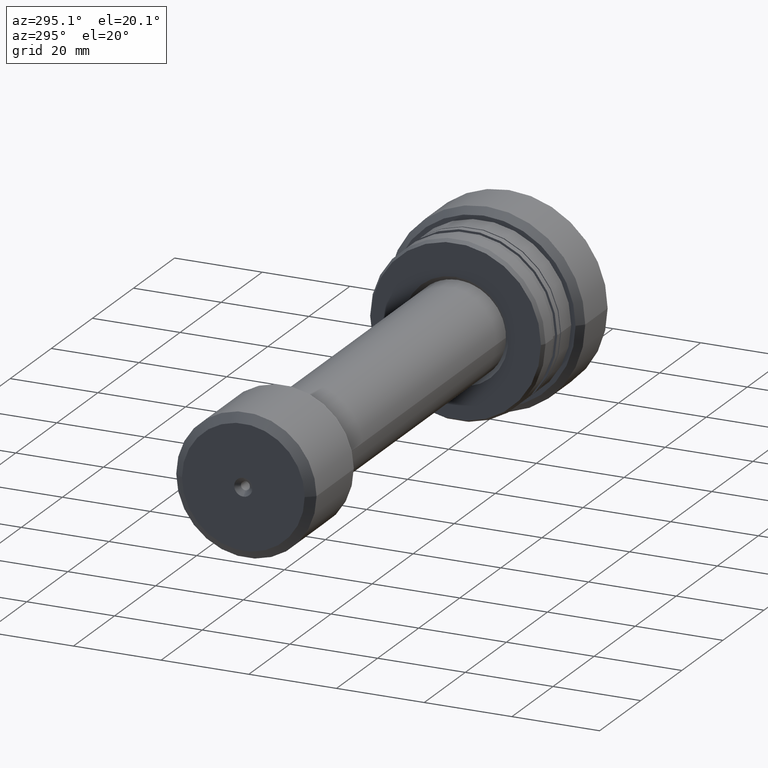
[diagram: clean part render]
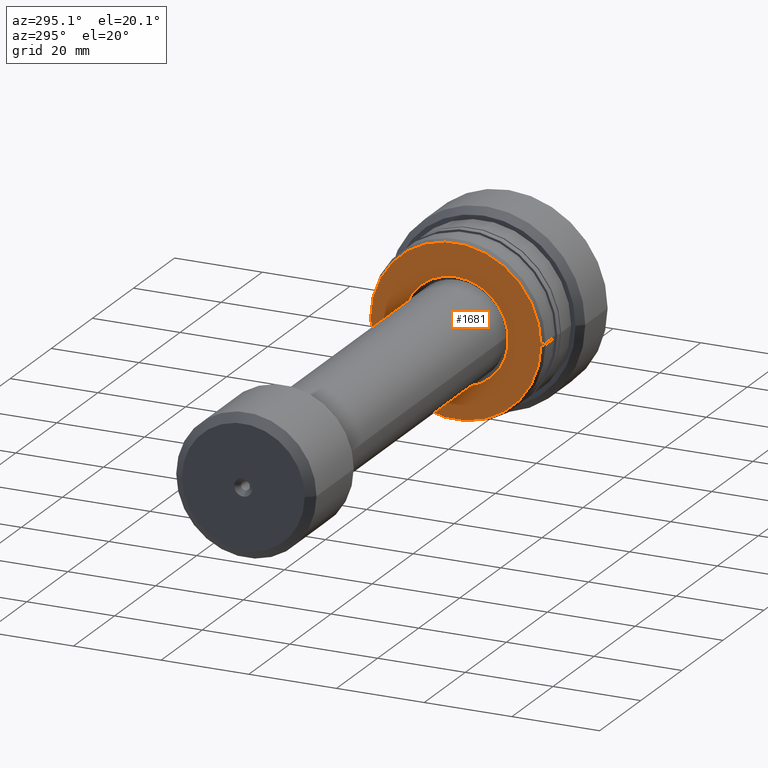
[diagram: same view with one face highlighted and labeled with its STEP entity id]
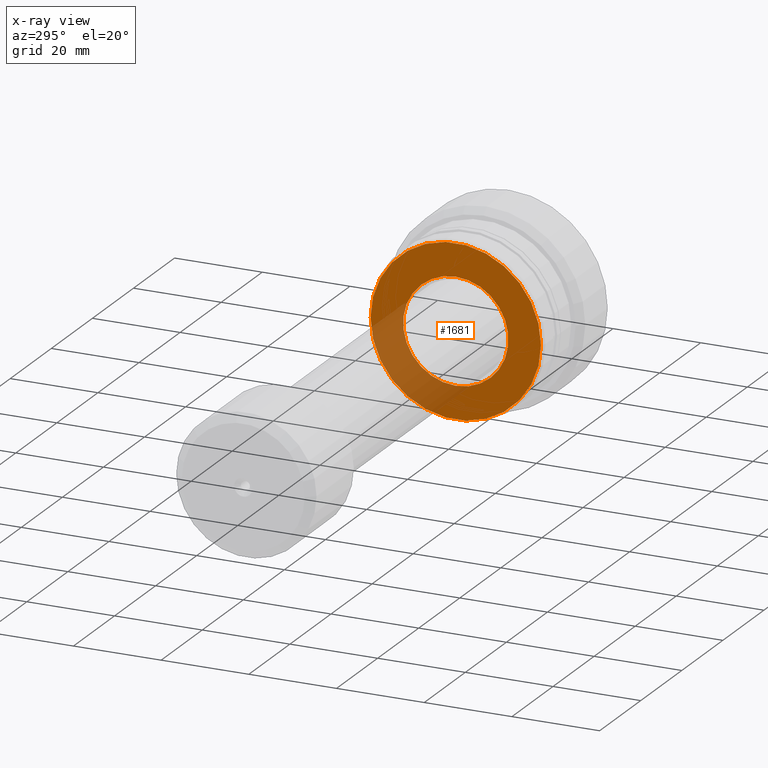
[diagram: x-ray of the same camera — body ghosted, the highlighted face saturated]
A machine part, auxiliary view. The second image highlights one B-rep face of the part: STEP entity #1681.
The next image is the same camera in x-ray: the body ghosted, the highlighted face saturated — about 25% of this face is hidden behind the body in this view.
In plain terms, the highlighted planar face has unit normal (-1, 0, 0).
Its self-contained STEP definition (entity closure, byte-faithful):
#9 = VERTEX_POINT ( 'NONE', #1636 ) ;
#133 = DIRECTION ( 'NONE',  ( -1.445602896647338522E-15, -1.000000000000000000, 0.000000000000000000 ) ) ;
#148 = CIRCLE ( 'NONE', #1540, 12.00000000000000533 ) ;
#207 = EDGE_LOOP ( 'NONE', ( #379, #436 ) ) ;
#239 = DIRECTION ( 'NONE',  ( -1.333885945136072597E-15, -1.000000000000000000, 0.000000000000000000 ) ) ;
#299 = DIRECTION ( 'NONE',  ( 1.000000000000000000, -1.333885945136072597E-15, 0.000000000000000000 ) ) ;
#379 = ORIENTED_EDGE ( 'NONE', *, *, #761, .T. ) ;
#433 = FACE_OUTER_BOUND ( 'NONE', #207, .T. ) ;
#436 = ORIENTED_EDGE ( 'NONE', *, *, #1176, .T. ) ;
#484 = CARTESIAN_POINT ( 'NONE',  ( -27.49999999999998224, 0.000000000000000000, 0.000000000000000000 ) ) ;
#608 = DIRECTION ( 'NONE',  ( -1.250402442523061283E-15, -1.000000000000000000, 0.000000000000000000 ) ) ;
#761 = EDGE_CURVE ( 'NONE', #1311, #9, #904, .T. ) ;
#818 = PLANE ( 'NONE',  #2283 ) ;
#819 = CARTESIAN_POINT ( 'NONE',  ( -27.49999999999996803, -3.708233295962692034E-15, 0.000000000000000000 ) ) ;
#829 = AXIS2_PLACEMENT_3D ( 'NONE', #819, #1402, #608 ) ;
#896 = CARTESIAN_POINT ( 'NONE',  ( -27.49999999999994316, 19.42264973081047330, 0.000000000000000000 ) ) ;
#904 = CIRCLE ( 'NONE', #984, 19.42264973081047685 ) ;
#909 = CIRCLE ( 'NONE', #829, 19.42264973081047685 ) ;
#984 = AXIS2_PLACEMENT_3D ( 'NONE', #1643, #1440, #1102 ) ;
#1083 = VERTEX_POINT ( 'NONE', #1563 ) ;
#1102 = DIRECTION ( 'NONE',  ( -1.250402442523061283E-15, -1.000000000000000000, 0.000000000000000000 ) ) ;
#1173 = ORIENTED_EDGE ( 'NONE', *, *, #2433, .T. ) ;
#1176 = EDGE_CURVE ( 'NONE', #9, #1311, #909, .T. ) ;
#1203 = FACE_BOUND ( 'NONE', #1284, .T. ) ;
#1284 = EDGE_LOOP ( 'NONE', ( #1297, #1173 ) ) ;
#1293 = EDGE_CURVE ( 'NONE', #1083, #1711, #148, .T. ) ;
#1297 = ORIENTED_EDGE ( 'NONE', *, *, #1293, .T. ) ;
#1311 = VERTEX_POINT ( 'NONE', #896 ) ;
#1379 = CARTESIAN_POINT ( 'NONE',  ( -27.49999999999998224, 1.469576158976822567E-15, -11.99999999999998934 ) ) ;
#1394 = DIRECTION ( 'NONE',  ( -1.000000000000000000, 1.333885945136072597E-15, 0.000000000000000000 ) ) ;
#1402 = DIRECTION ( 'NONE',  ( -1.000000000000000000, 1.333885945136072597E-15, -0.000000000000000000 ) ) ;
#1440 = DIRECTION ( 'NONE',  ( -1.000000000000000000, 1.333885945136072597E-15, -0.000000000000000000 ) ) ;
#1462 = AXIS2_PLACEMENT_3D ( 'NONE', #2011, #2405, #1847 ) ;
#1540 = AXIS2_PLACEMENT_3D ( 'NONE', #484, #299, #133 ) ;
#1563 = CARTESIAN_POINT ( 'NONE',  ( -27.49999999999998224, 0.000000000000000000, 11.99999999999998934 ) ) ;
#1572 = CARTESIAN_POINT ( 'NONE',  ( -27.49999999999998224, -3.708233295962674679E-15, 0.000000000000000000 ) ) ;
#1636 = CARTESIAN_POINT ( 'NONE',  ( -27.49999999999999289, -19.42264973081048041, 2.413941090337216083E-15 ) ) ;
#1643 = CARTESIAN_POINT ( 'NONE',  ( -27.49999999999996803, -3.708233295962692034E-15, 0.000000000000000000 ) ) ;
#1681 = ADVANCED_FACE ( 'NONE', ( #1203, #433 ), #818, .T. ) ;
#1711 = VERTEX_POINT ( 'NONE', #1379 ) ;
#1847 = DIRECTION ( 'NONE',  ( -1.445602896647338522E-15, -1.000000000000000000, 0.000000000000000000 ) ) ;
#2011 = CARTESIAN_POINT ( 'NONE',  ( -27.49999999999998224, 0.000000000000000000, 0.000000000000000000 ) ) ;
#2200 = CIRCLE ( 'NONE', #1462, 12.00000000000000533 ) ;
#2283 = AXIS2_PLACEMENT_3D ( 'NONE', #1572, #1394, #239 ) ;
#2405 = DIRECTION ( 'NONE',  ( 1.000000000000000000, -1.333885945136072597E-15, 0.000000000000000000 ) ) ;
#2433 = EDGE_CURVE ( 'NONE', #1711, #1083, #2200, .T. ) ;